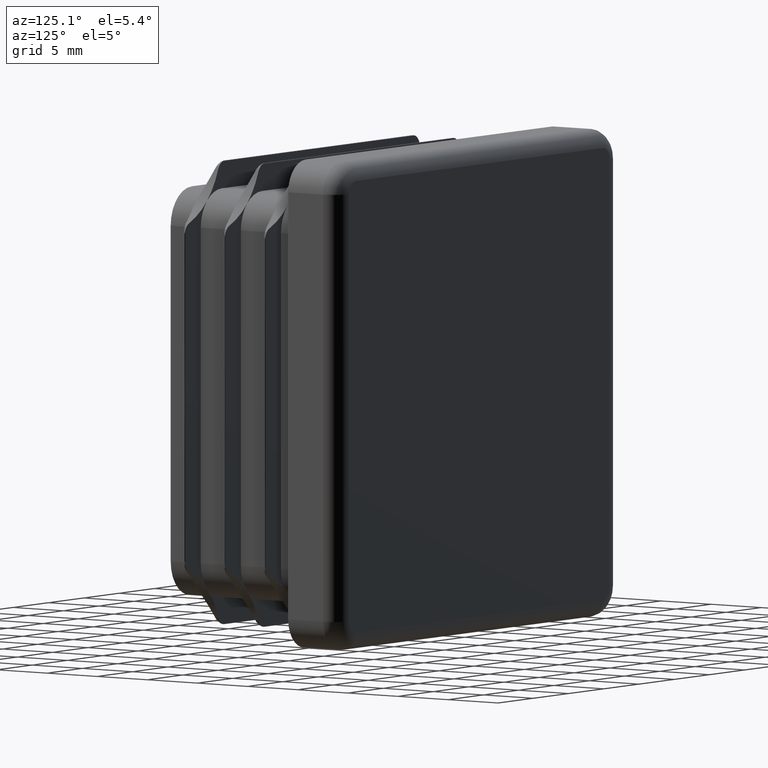
[diagram: clean part render]
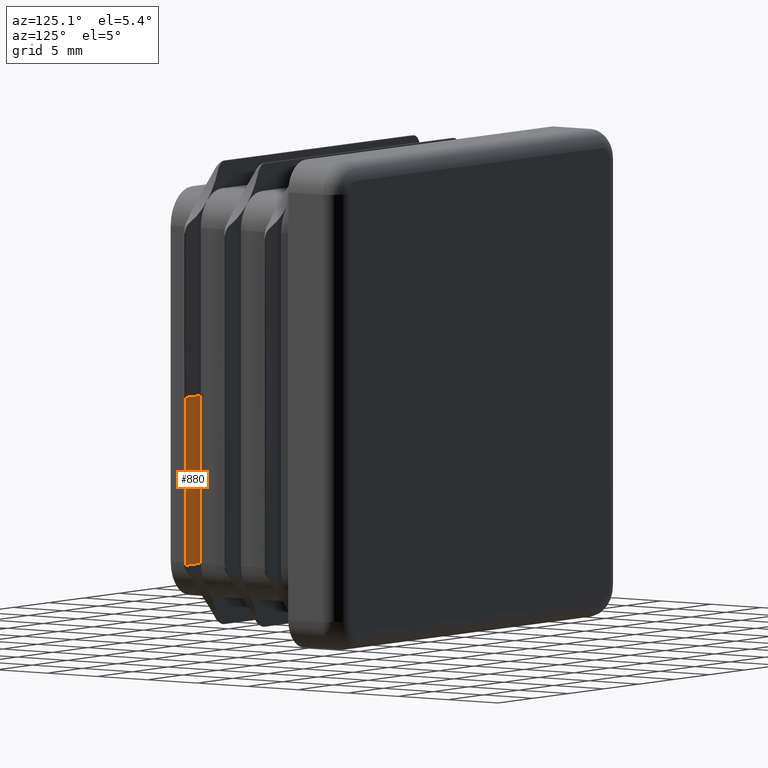
[diagram: same view with one face highlighted and labeled with its STEP entity id]
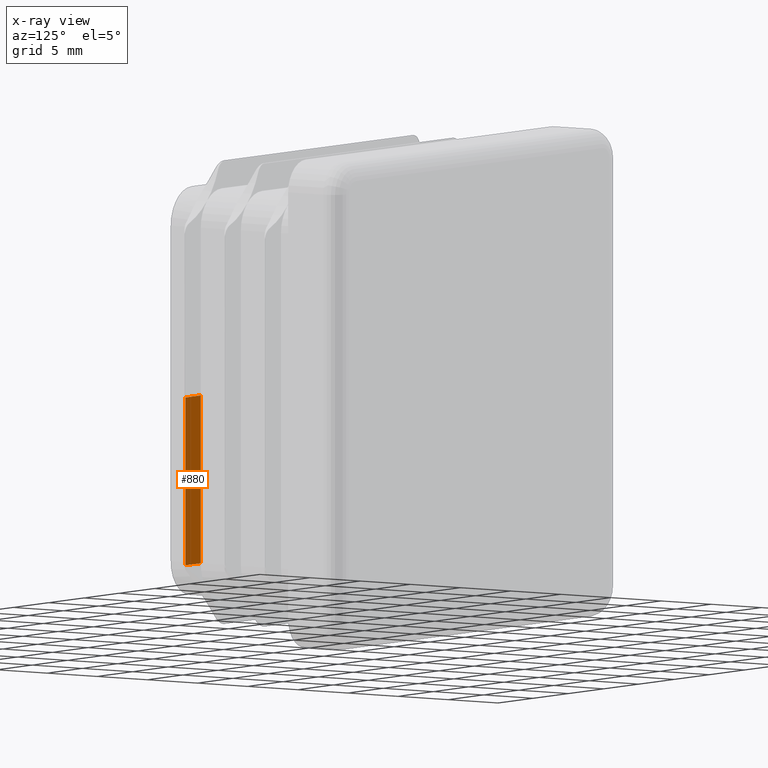
[diagram: x-ray of the same camera — body ghosted, the highlighted face saturated]
A machine part, auxiliary view. The second image highlights one B-rep face of the part: STEP entity #880.
The next image is the same camera in x-ray: the body ghosted, the highlighted face saturated — about 0% of this face is hidden behind the body in this view.
In plain terms, the highlighted planar face has unit normal (0, -1, -0).
Its self-contained STEP definition (entity closure, byte-faithful):
#493 = DIRECTION ( 'NONE',  ( -3.122502256758250246E-14, 0.000000000000000000, -1.000000000000000000 ) ) ;
#778 = DIRECTION ( 'NONE',  ( -1.000000000000000000, 0.000000000000000000, 0.000000000000000000 ) ) ;
#880 = ADVANCED_FACE ( 'NONE', ( #6927 ), #1475, .F. ) ;
#1475 = PLANE ( 'NONE',  #17719 ) ;
#2266 = ORIENTED_EDGE ( 'NONE', *, *, #12154, .T. ) ;
#2561 = CARTESIAN_POINT ( 'NONE',  ( 16.74999999999999289, -11.00000000000000000, -13.74999999999999822 ) ) ;
#3796 = ORIENTED_EDGE ( 'NONE', *, *, #11868, .F. ) ;
#4351 = EDGE_LOOP ( 'NONE', ( #11468, #10047, #2266, #3796, #4785 ) ) ;
#4466 = VERTEX_POINT ( 'NONE', #2561 ) ;
#4785 = ORIENTED_EDGE ( 'NONE', *, *, #20107, .F. ) ;
#6278 = CARTESIAN_POINT ( 'NONE',  ( 16.74999999999999289, -11.00000000000000000, 0.000000000000000000 ) ) ;
#6373 = VERTEX_POINT ( 'NONE', #6278 ) ;
#6718 = CARTESIAN_POINT ( 'NONE',  ( 18.95000000000009166, -10.99999999999999822, -13.64722551352493163 ) ) ;
#6927 = FACE_OUTER_BOUND ( 'NONE', #4351, .T. ) ;
#7101 = CARTESIAN_POINT ( 'NONE',  ( 18.95000000000009166, -11.00000000000000000, 0.000000000000000000 ) ) ;
#7822 = DIRECTION ( 'NONE',  ( 0.000000000000000000, -1.000000000000000000, -0.000000000000000000 ) ) ;
#8524 = CIRCLE ( 'NONE', #12484, 1.000000000000000888 ) ;
#9866 = CARTESIAN_POINT ( 'NONE',  ( 18.95000000000009166, -11.00000000000000000, 0.000000000000000000 ) ) ;
#10047 = ORIENTED_EDGE ( 'NONE', *, *, #10314, .T. ) ;
#10208 = LINE ( 'NONE', #17105, #20385 ) ;
#10314 = EDGE_CURVE ( 'NONE', #19838, #15214, #8524, .T. ) ;
#10321 = CARTESIAN_POINT ( 'NONE',  ( 18.90981028720147705, -10.99999999999999822, -13.74999999999999822 ) ) ;
#11468 = ORIENTED_EDGE ( 'NONE', *, *, #17730, .T. ) ;
#11755 = DIRECTION ( 'NONE',  ( -1.000000000000000000, 0.000000000000000000, 0.000000000000000000 ) ) ;
#11868 = EDGE_CURVE ( 'NONE', #6373, #4466, #10208, .T. ) ;
#12154 = EDGE_CURVE ( 'NONE', #15214, #4466, #18152, .T. ) ;
#12380 = CARTESIAN_POINT ( 'NONE',  ( 16.75000000000007816, -11.00000000000000000, 0.000000000000000000 ) ) ;
#12484 = AXIS2_PLACEMENT_3D ( 'NONE', #17931, #14574, #493 ) ;
#13671 = VECTOR ( 'NONE', #11755, 1000.000000000000000 ) ;
#14480 = LINE ( 'NONE', #19814, #17188 ) ;
#14574 = DIRECTION ( 'NONE',  ( 0.000000000000000000, 1.000000000000000000, 0.000000000000000000 ) ) ;
#14727 = CARTESIAN_POINT ( 'NONE',  ( 16.75000000000007816, -11.00000000000000000, -13.74999999999999822 ) ) ;
#15030 = VECTOR ( 'NONE', #17923, 1000.000000000000000 ) ;
#15214 = VERTEX_POINT ( 'NONE', #10321 ) ;
#15521 = DIRECTION ( 'NONE',  ( 1.261617073437677752E-16, 0.000000000000000000, -1.000000000000000000 ) ) ;
#15526 = LINE ( 'NONE', #9866, #15030 ) ;
#17105 = CARTESIAN_POINT ( 'NONE',  ( 16.75000000000007816, -11.00000000000000000, 0.000000000000000000 ) ) ;
#17188 = VECTOR ( 'NONE', #778, 1000.000000000000000 ) ;
#17719 = AXIS2_PLACEMENT_3D ( 'NONE', #12380, #7822, #18825 ) ;
#17730 = EDGE_CURVE ( 'NONE', #20593, #19838, #15526, .T. ) ;
#17923 = DIRECTION ( 'NONE',  ( 1.261617073437677752E-16, 0.000000000000000000, -1.000000000000000000 ) ) ;
#17931 = CARTESIAN_POINT ( 'NONE',  ( 18.00000000000009237, -10.99999999999999822, -13.33497561360501216 ) ) ;
#18152 = LINE ( 'NONE', #14727, #13671 ) ;
#18825 = DIRECTION ( 'NONE',  ( 0.000000000000000000, 0.000000000000000000, -1.000000000000000000 ) ) ;
#19814 = CARTESIAN_POINT ( 'NONE',  ( 16.75000000000007816, -11.00000000000000000, 0.000000000000000000 ) ) ;
#19838 = VERTEX_POINT ( 'NONE', #6718 ) ;
#20107 = EDGE_CURVE ( 'NONE', #20593, #6373, #14480, .T. ) ;
#20385 = VECTOR ( 'NONE', #15521, 1000.000000000000000 ) ;
#20593 = VERTEX_POINT ( 'NONE', #7101 ) ;